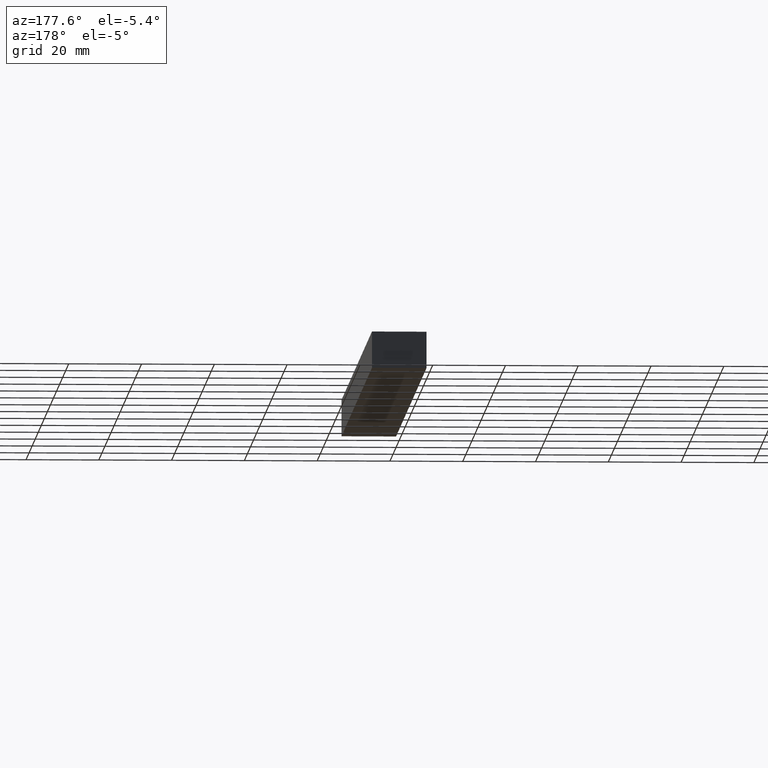
[diagram: clean part render]
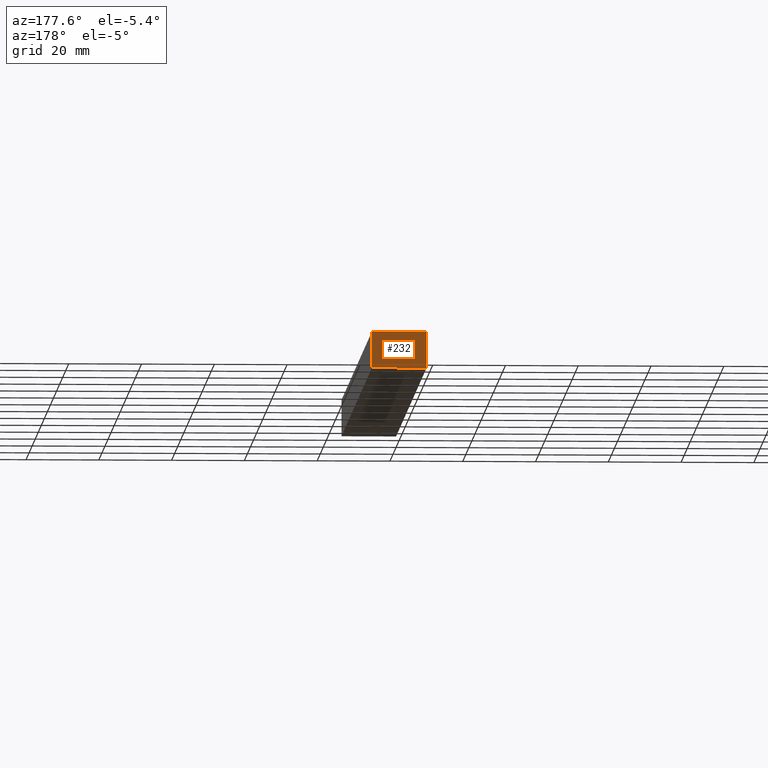
[diagram: same view with one face highlighted and labeled with its STEP entity id]
A machine part, auxiliary view. The second image highlights one B-rep face of the part: STEP entity #232.
In plain terms, the highlighted planar face has unit normal (0, 1, 0).
Its self-contained STEP definition (entity closure, byte-faithful):
#7 = VERTEX_POINT ( 'NONE', #188 ) ;
#9 = DIRECTION ( 'NONE',  ( -0.0000000000000000000, -0.0000000000000000000, 1.000000000000000000 ) ) ;
#10 = ORIENTED_EDGE ( 'NONE', *, *, #231, .F. ) ;
#14 = LINE ( 'NONE', #54, #176 ) ;
#16 = CARTESIAN_POINT ( 'NONE',  ( 0.0000000000000000000, 200.0000000000000000, 0.0000000000000000000 ) ) ;
#18 = ORIENTED_EDGE ( 'NONE', *, *, #185, .F. ) ;
#41 = VECTOR ( 'NONE', #194, 1000.000000000000000 ) ;
#49 = VERTEX_POINT ( 'NONE', #58 ) ;
#54 = CARTESIAN_POINT ( 'NONE',  ( 15.00000000000000000, 200.0000000000000000, 0.0000000000000000000 ) ) ;
#55 = DIRECTION ( 'NONE',  ( 1.000000000000000000, 0.0000000000000000000, 0.0000000000000000000 ) ) ;
#56 = LINE ( 'NONE', #141, #108 ) ;
#58 = CARTESIAN_POINT ( 'NONE',  ( 0.0000000000000000000, 200.0000000000000000, 10.00000000000000000 ) ) ;
#69 = LINE ( 'NONE', #152, #41 ) ;
#72 = LINE ( 'NONE', #74, #101 ) ;
#74 = CARTESIAN_POINT ( 'NONE',  ( 0.0000000000000000000, 200.0000000000000000, 0.0000000000000000000 ) ) ;
#75 = CARTESIAN_POINT ( 'NONE',  ( 15.00000000000000000, 200.0000000000000000, 0.0000000000000000000 ) ) ;
#76 = EDGE_CURVE ( 'NONE', #7, #49, #69, .T. ) ;
#79 = AXIS2_PLACEMENT_3D ( 'NONE', #111, #180, #55 ) ;
#88 = VERTEX_POINT ( 'NONE', #75 ) ;
#95 = EDGE_CURVE ( 'NONE', #49, #197, #72, .T. ) ;
#96 = DIRECTION ( 'NONE',  ( -0.0000000000000000000, -0.0000000000000000000, -1.000000000000000000 ) ) ;
#101 = VECTOR ( 'NONE', #96, 1000.000000000000000 ) ;
#108 = VECTOR ( 'NONE', #116, 1000.000000000000000 ) ;
#111 = CARTESIAN_POINT ( 'NONE',  ( 0.0000000000000000000, 200.0000000000000000, 0.0000000000000000000 ) ) ;
#116 = DIRECTION ( 'NONE',  ( 1.000000000000000000, -0.0000000000000000000, -0.0000000000000000000 ) ) ;
#141 = CARTESIAN_POINT ( 'NONE',  ( 0.0000000000000000000, 200.0000000000000000, 0.0000000000000000000 ) ) ;
#144 = ORIENTED_EDGE ( 'NONE', *, *, #95, .F. ) ;
#152 = CARTESIAN_POINT ( 'NONE',  ( 0.0000000000000000000, 200.0000000000000000, 10.00000000000000000 ) ) ;
#172 = EDGE_LOOP ( 'NONE', ( #18, #144, #230, #10 ) ) ;
#176 = VECTOR ( 'NONE', #9, 1000.000000000000000 ) ;
#180 = DIRECTION ( 'NONE',  ( -0.0000000000000000000, 1.000000000000000000, 0.0000000000000000000 ) ) ;
#185 = EDGE_CURVE ( 'NONE', #197, #88, #56, .T. ) ;
#188 = CARTESIAN_POINT ( 'NONE',  ( 15.00000000000000000, 200.0000000000000000, 10.00000000000000000 ) ) ;
#190 = PLANE ( 'NONE',  #79 ) ;
#194 = DIRECTION ( 'NONE',  ( -1.000000000000000000, -0.0000000000000000000, -0.0000000000000000000 ) ) ;
#197 = VERTEX_POINT ( 'NONE', #16 ) ;
#230 = ORIENTED_EDGE ( 'NONE', *, *, #76, .F. ) ;
#231 = EDGE_CURVE ( 'NONE', #88, #7, #14, .T. ) ;
#232 = ADVANCED_FACE ( 'NONE', ( #233 ), #190, .T. ) ;
#233 = FACE_OUTER_BOUND ( 'NONE', #172, .T. ) ;